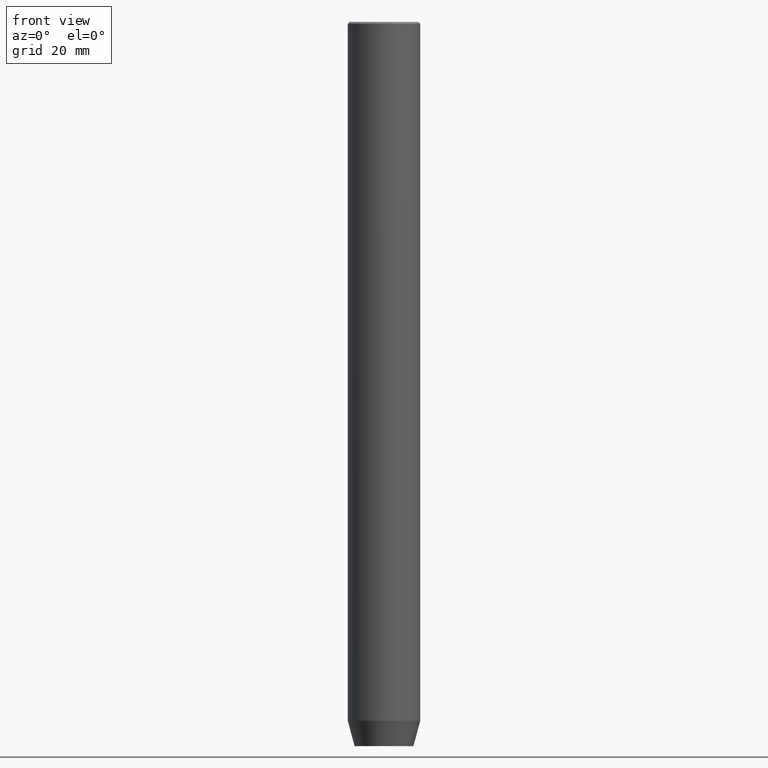
[diagram: clean part render]
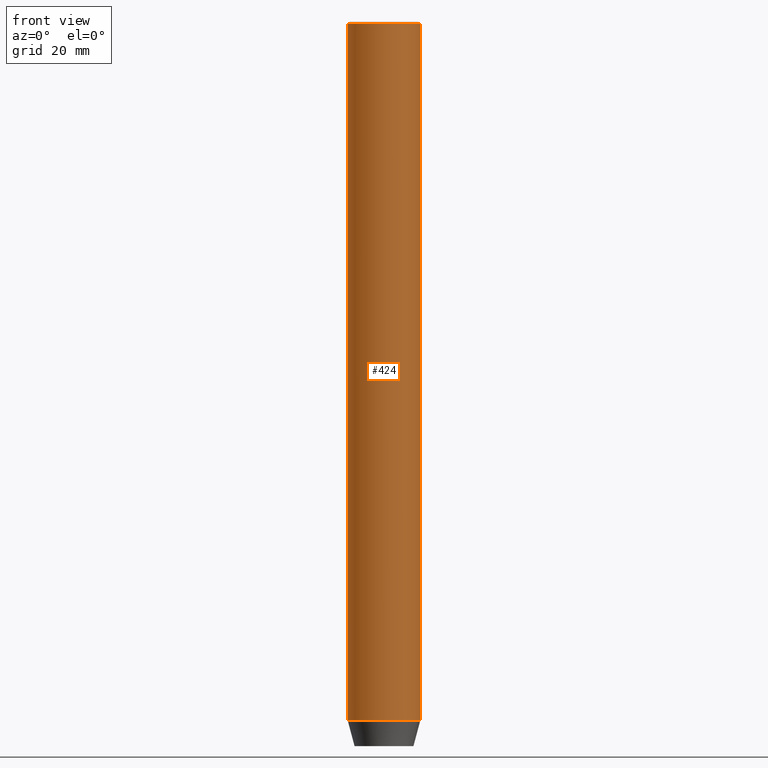
[diagram: same view with one face highlighted and labeled with its STEP entity id]
A machine part, front view. The second image highlights one B-rep face of the part: STEP entity #424.
In plain terms, the highlighted cylindrical surface (edge-blend (fillet) strip) has radius 10 mm, axis along (-0, -0, 1).
Its self-contained STEP definition (entity closure, byte-faithful):
#13 = AXIS2_PLACEMENT_3D ( 'NONE', #433, #299, #342 ) ;
#18 = CARTESIAN_POINT ( 'NONE',  ( 10.00000000000000000, 0.000000000000000000, -0.4999999999999987232 ) ) ;
#24 = LINE ( 'NONE', #203, #257 ) ;
#44 = VERTEX_POINT ( 'NONE', #18 ) ;
#53 = VERTEX_POINT ( 'NONE', #569 ) ;
#89 = VERTEX_POINT ( 'NONE', #210 ) ;
#92 = CIRCLE ( 'NONE', #410, 10.00000000000000000 ) ;
#101 = EDGE_CURVE ( 'NONE', #53, #44, #24, .T. ) ;
#123 = EDGE_CURVE ( 'NONE', #44, #517, #92, .T. ) ;
#127 = CYLINDRICAL_SURFACE ( 'NONE', #354, 10.00000000000000000 ) ;
#173 = CARTESIAN_POINT ( 'NONE',  ( 0.000000000000000000, 0.000000000000000000, 0.000000000000000000 ) ) ;
#202 = DIRECTION ( 'NONE',  ( 0.000000000000000000, 0.000000000000000000, -1.000000000000000000 ) ) ;
#203 = CARTESIAN_POINT ( 'NONE',  ( 10.00000000000000000, 0.000000000000000000, 0.000000000000000000 ) ) ;
#210 = CARTESIAN_POINT ( 'NONE',  ( -10.00000000000000000, 1.224646799147353256E-15, -193.0000000000000000 ) ) ;
#220 = FACE_OUTER_BOUND ( 'NONE', #586, .T. ) ;
#245 = DIRECTION ( 'NONE',  ( 1.000000000000000000, 0.000000000000000000, 0.000000000000000000 ) ) ;
#255 = CARTESIAN_POINT ( 'NONE',  ( 0.000000000000000000, 0.000000000000000000, -0.4999999999999987232 ) ) ;
#257 = VECTOR ( 'NONE', #401, 1000.000000000000000 ) ;
#258 = VECTOR ( 'NONE', #561, 1000.000000000000000 ) ;
#299 = DIRECTION ( 'NONE',  ( -0.000000000000000000, -0.000000000000000000, 1.000000000000000000 ) ) ;
#304 = CARTESIAN_POINT ( 'NONE',  ( -10.00000000000000000, 1.224646799147353256E-15, 0.000000000000000000 ) ) ;
#323 = ORIENTED_EDGE ( 'NONE', *, *, #324, .T. ) ;
#324 = EDGE_CURVE ( 'NONE', #89, #53, #487, .T. ) ;
#325 = ORIENTED_EDGE ( 'NONE', *, *, #101, .T. ) ;
#342 = DIRECTION ( 'NONE',  ( 1.000000000000000000, 0.000000000000000000, 0.000000000000000000 ) ) ;
#354 = AXIS2_PLACEMENT_3D ( 'NONE', #173, #491, #357 ) ;
#357 = DIRECTION ( 'NONE',  ( 1.000000000000000000, 0.000000000000000000, 0.000000000000000000 ) ) ;
#382 = EDGE_CURVE ( 'NONE', #89, #517, #571, .T. ) ;
#383 = ORIENTED_EDGE ( 'NONE', *, *, #123, .T. ) ;
#401 = DIRECTION ( 'NONE',  ( -0.000000000000000000, -0.000000000000000000, 1.000000000000000000 ) ) ;
#410 = AXIS2_PLACEMENT_3D ( 'NONE', #255, #202, #245 ) ;
#424 = ADVANCED_FACE ( 'NONE', ( #220 ), #127, .T. ) ;
#433 = CARTESIAN_POINT ( 'NONE',  ( 0.000000000000000000, 0.000000000000000000, -193.0000000000000000 ) ) ;
#471 = ORIENTED_EDGE ( 'NONE', *, *, #382, .F. ) ;
#487 = CIRCLE ( 'NONE', #13, 10.00000000000000000 ) ;
#491 = DIRECTION ( 'NONE',  ( -0.000000000000000000, -0.000000000000000000, 1.000000000000000000 ) ) ;
#496 = CARTESIAN_POINT ( 'NONE',  ( -10.00000000000000000, 1.224646799147353256E-15, -0.4999999999999987232 ) ) ;
#517 = VERTEX_POINT ( 'NONE', #496 ) ;
#561 = DIRECTION ( 'NONE',  ( -0.000000000000000000, -0.000000000000000000, 1.000000000000000000 ) ) ;
#569 = CARTESIAN_POINT ( 'NONE',  ( 10.00000000000000000, 0.000000000000000000, -193.0000000000000000 ) ) ;
#571 = LINE ( 'NONE', #304, #258 ) ;
#586 = EDGE_LOOP ( 'NONE', ( #471, #323, #325, #383 ) ) ;